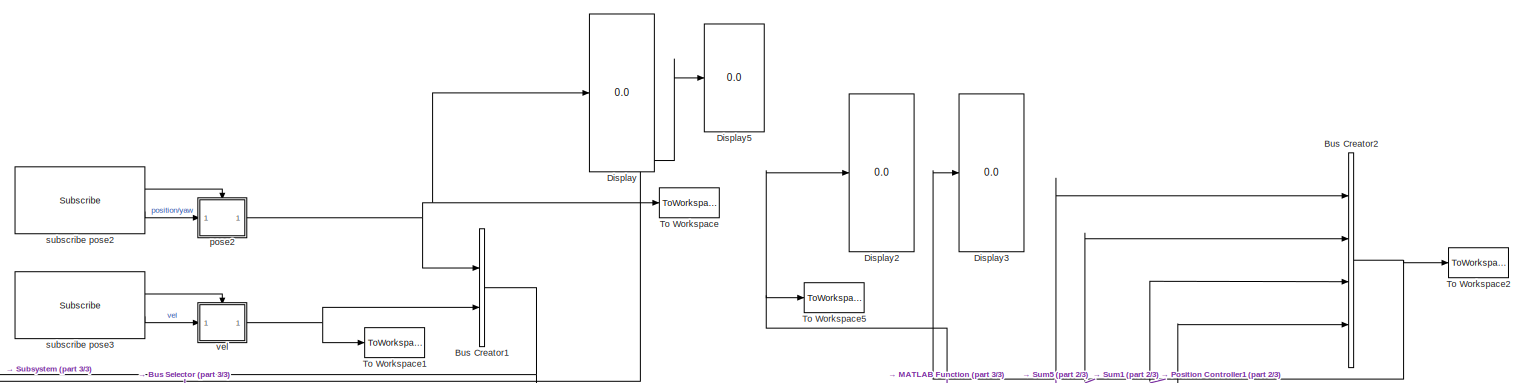
[diagram: root canvas - part 1/3, top center region]
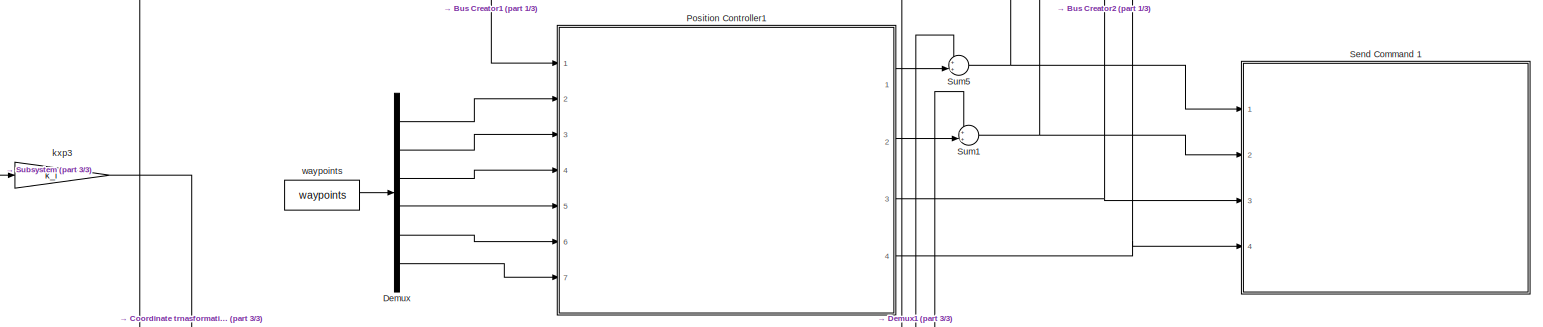
[diagram: root canvas - part 2/3, central region]
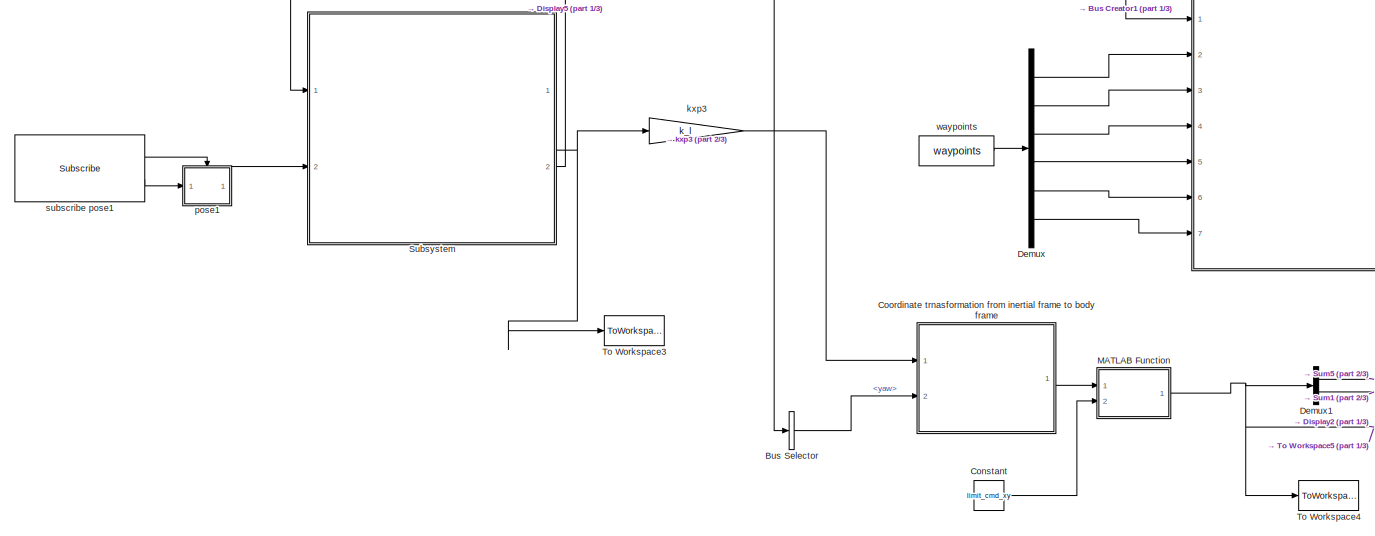
[diagram: root canvas - part 3/3, bottom left region]
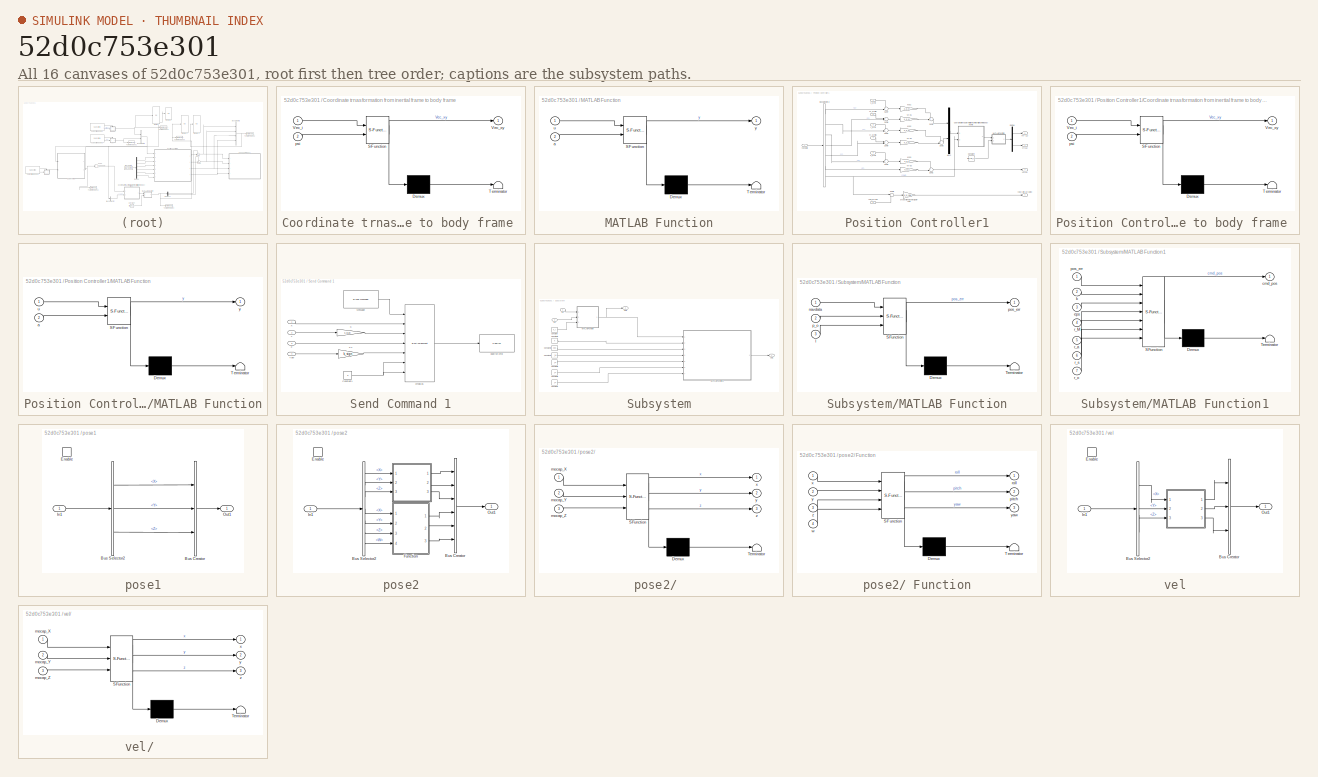
[diagram: thumbnail index - all 16 canvases of the model, root first then tree order]
MODEL slx_52d0c753e301
KIND model
CONFIG AbsTol = auto
CONFIG EnableMultiTasking = on
CONFIG FixedStep = sampleTime
CONFIG MaxStep = auto
CONFIG MinStep = auto
CONFIG RelTol = 1e-3
CONFIG SampleTimeConstraint = Unconstrained
CONFIG Solver = FixedStepAuto
CONFIG SolverName = FixedStepAuto
CONFIG StartTime = 0.0
CONFIG StopTime = inf
BLOCK [BusCreator] Bus Creator1
  DisplayOption = bar
  InheritFromInputs = on
  Inputs = 2
  Ports = [2, 1]
BLOCK [BusCreator] Bus Creator2
  DisplayOption = bar
  InheritFromInputs = on
  Inputs = 4
  Ports = [4, 1]
BLOCK [BusSelector] Bus Selector
  OutputAsBus = off
  OutputSignals = signal1.yaw
  Ports = [1, 1]
BLOCK [Constant] Constant
  Value = limit_cmd_xy
BLOCK [SubSystem] Coordinate trnasformation from inertial frame to body frame 
  ErrorFcn = Stateflow.Translate.translate
  PermitHierarchicalResolution = ExplicitOnly
  Ports = [2, 1]
  RequestExecContextInheritance = off
  SFBlockType = MATLAB Function
  TreatAsAtomicUnit = on
  Variant = off
BLOCK [Demux] Coordinate trnasformation from inertial frame to body frame / Demux 
  Outputs = 1
  Ports = [1, 1]
BLOCK [S-Function] Coordinate trnasformation from inertial frame to body frame / SFunction 
  EnableBusSupport = on
  FunctionName = sf_sfun
  PortCounts = [2 2]
  Ports = [2, 2]
  SFcnIsStateOwnerBlock = off
  SFunctionDeploymentMode = off
  Tag = Stateflow S-Function r2017bSingleARDroneCtrl 3
BLOCK [Terminator] Coordinate trnasformation from inertial frame to body frame / Terminator 
BLOCK [Inport] Coordinate trnasformation from inertial frame to body frame /Vec_i
  IconDisplay = Port number
BLOCK [Outport] Coordinate trnasformation from inertial frame to body frame /Vec_xy
  IconDisplay = Port number
BLOCK [Inport] Coordinate trnasformation from inertial frame to body frame /psi
  IconDisplay = Port number
  Port = 2
BLOCK [Demux] Demux
  DisplayOption = bar
  Outputs = 6
  Ports = [1, 6]
BLOCK [Demux] Demux1
  DisplayOption = bar
  Outputs = 2
  Ports = [1, 2]
BLOCK [Display] Display
  Decimation = 1
  Ports = [1]
BLOCK [Display] Display2
  Decimation = 1
  Ports = [1]
BLOCK [Display] Display3
  Decimation = 1
  Ports = [1]
BLOCK [Display] Display5
  Decimation = 1
  Ports = [1]
BLOCK [SubSystem] MATLAB Function
  ErrorFcn = Stateflow.Translate.translate
  PermitHierarchicalResolution = ExplicitOnly
  Ports = [2, 1]
  RequestExecContextInheritance = off
  SFBlockType = MATLAB Function
  TreatAsAtomicUnit = on
  Variant = off
BLOCK [Demux] MATLAB Function/ Demux 
  Outputs = 1
  Ports = [1, 1]
BLOCK [S-Function] MATLAB Function/ SFunction 
  EnableBusSupport = on
  FunctionName = sf_sfun
  PortCounts = [2 2]
  Ports = [2, 2]
  SFcnIsStateOwnerBlock = off
  SFunctionDeploymentMode = off
  Tag = Stateflow S-Function r2017bSingleARDroneCtrl 4
BLOCK [Terminator] MATLAB Function/ Terminator 
BLOCK [Inport] MATLAB Function/a
  IconDisplay = Port number
  Port = 2
BLOCK [Inport] MATLAB Function/u
  IconDisplay = Port number
BLOCK [Outport] MATLAB Function/y
  IconDisplay = Port number
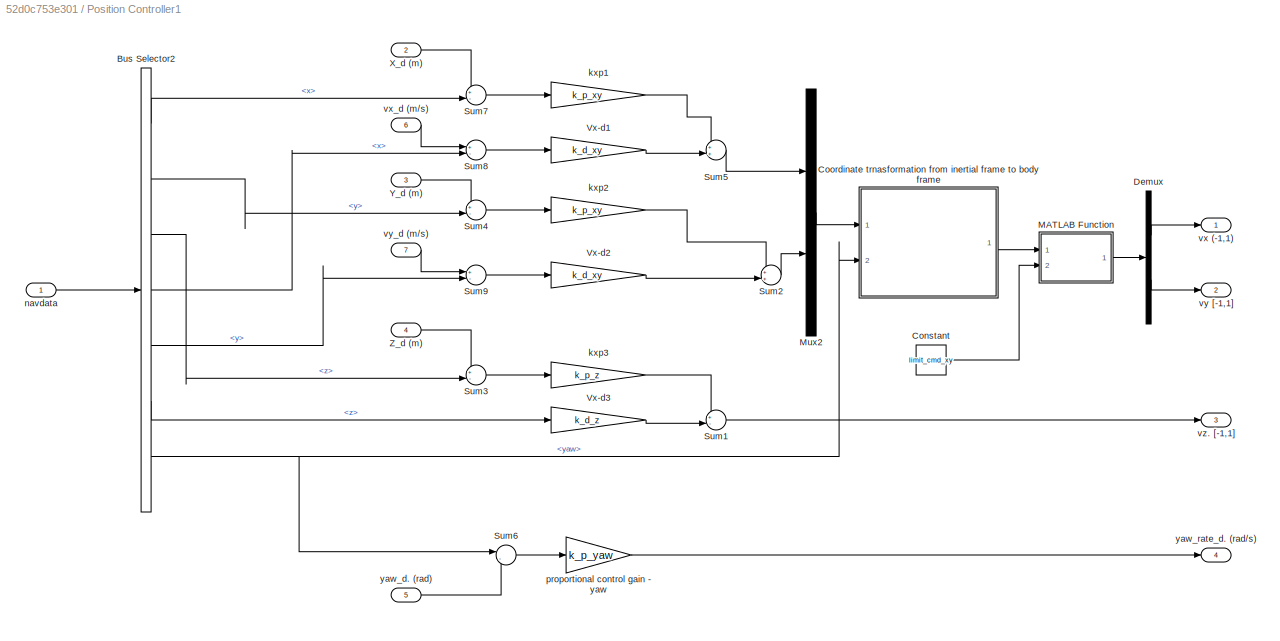
BLOCK [SubSystem] Position Controller1
  AncestorBlock = ARBlocks/Baseline Controller
  Ports = [7, 4]
  RequestExecContextInheritance = off
  Variant = off
BLOCK [BusSelector] Position Controller1/Bus Selector2
  OutputAsBus = off
  OutputSignals = signal1.x,signal1.y,signal1.z,signal2.x,signal2.y,signal2.z,signal1.yaw
  Ports = [1, 7]
BLOCK [Constant] Position Controller1/Constant
  Value = limit_cmd_xy
BLOCK [SubSystem] Position Controller1/Coordinate trnasformation from inertial frame to body frame 
  ErrorFcn = Stateflow.Translate.translate
  PermitHierarchicalResolution = ExplicitOnly
  Ports = [2, 1]
  RequestExecContextInheritance = off
  SFBlockType = MATLAB Function
  TreatAsAtomicUnit = on
  Variant = off
BLOCK [Demux] Position Controller1/Coordinate trnasformation from inertial frame to body frame / Demux 
  Outputs = 1
  Ports = [1, 1]
BLOCK [S-Function] Position Controller1/Coordinate trnasformation from inertial frame to body frame / SFunction 
  EnableBusSupport = on
  FunctionName = sf_sfun
  PortCounts = [2 2]
  Ports = [2, 2]
  SFcnIsStateOwnerBlock = off
  SFunctionDeploymentMode = off
  Tag = Stateflow S-Function r2017bSingleARDroneCtrl 13
BLOCK [Terminator] Position Controller1/Coordinate trnasformation from inertial frame to body frame / Terminator 
BLOCK [Inport] Position Controller1/Coordinate trnasformation from inertial frame to body frame /Vec_i
  IconDisplay = Port number
BLOCK [Outport] Position Controller1/Coordinate trnasformation from inertial frame to body frame /Vec_xy
  IconDisplay = Port number
BLOCK [Inport] Position Controller1/Coordinate trnasformation from inertial frame to body frame /psi
  IconDisplay = Port number
  Port = 2
BLOCK [Demux] Position Controller1/Demux
  DisplayOption = bar
  Outputs = 2
  Ports = [1, 2]
BLOCK [SubSystem] Position Controller1/MATLAB Function
  ErrorFcn = Stateflow.Translate.translate
  PermitHierarchicalResolution = ExplicitOnly
  Ports = [2, 1]
  RequestExecContextInheritance = off
  SFBlockType = MATLAB Function
  TreatAsAtomicUnit = on
  Variant = off
BLOCK [Demux] Position Controller1/MATLAB Function/ Demux 
  Outputs = 1
  Ports = [1, 1]
BLOCK [S-Function] Position Controller1/MATLAB Function/ SFunction 
  EnableBusSupport = on
  FunctionName = sf_sfun
  PortCounts = [2 2]
  Ports = [2, 2]
  SFcnIsStateOwnerBlock = off
  SFunctionDeploymentMode = off
  Tag = Stateflow S-Function r2017bSingleARDroneCtrl 5
BLOCK [Terminator] Position Controller1/MATLAB Function/ Terminator 
BLOCK [Inport] Position Controller1/MATLAB Function/a
  IconDisplay = Port number
  Port = 2
BLOCK [Inport] Position Controller1/MATLAB Function/u
  IconDisplay = Port number
BLOCK [Outport] Position Controller1/MATLAB Function/y
  IconDisplay = Port number
BLOCK [Mux] Position Controller1/Mux2
  DisplayOption = bar
  Inputs = 2
  Ports = [2, 1]
BLOCK [Sum] Position Controller1/Sum1
  IconShape = round
  InputSameDT = off
  Inputs = +-|
  OutDataTypeStr = Inherit: Inherit via internal rule
  Ports = [2, 1]
  SaturateOnIntegerOverflow = off
BLOCK [Sum] Position Controller1/Sum2
  IconShape = round
  InputSameDT = off
  Inputs = ++|
  OutDataTypeStr = Inherit: Inherit via internal rule
  Ports = [2, 1]
  SaturateOnIntegerOverflow = off
BLOCK [Sum] Position Controller1/Sum3
  IconShape = round
  InputSameDT = off
  Inputs = +-|
  OutDataTypeStr = Inherit: Inherit via internal rule
  Ports = [2, 1]
  SaturateOnIntegerOverflow = off
BLOCK [Sum] Position Controller1/Sum4
  IconShape = round
  InputSameDT = off
  Inputs = +-|
  OutDataTypeStr = Inherit: Inherit via internal rule
  Ports = [2, 1]
  SaturateOnIntegerOverflow = off
BLOCK [Sum] Position Controller1/Sum5
  IconShape = round
  InputSameDT = off
  Inputs = ++|
  OutDataTypeStr = Inherit: Inherit via internal rule
  Ports = [2, 1]
  SaturateOnIntegerOverflow = off
BLOCK [Sum] Position Controller1/Sum6
  IconShape = round
  InputSameDT = off
  Inputs = |-+
  OutDataTypeStr = Inherit: Inherit via internal rule
  Ports = [2, 1]
  SaturateOnIntegerOverflow = off
BLOCK [Sum] Position Controller1/Sum7
  IconShape = round
  InputSameDT = off
  Inputs = +-|
  OutDataTypeStr = Inherit: Inherit via internal rule
  Ports = [2, 1]
  SaturateOnIntegerOverflow = off
BLOCK [Sum] Position Controller1/Sum8
  IconShape = round
  InputSameDT = off
  Inputs = +-|
  OutDataTypeStr = Inherit: Inherit via internal rule
  Ports = [2, 1]
  SaturateOnIntegerOverflow = off
BLOCK [Sum] Position Controller1/Sum9
  IconShape = round
  InputSameDT = off
  Inputs = +-|
  OutDataTypeStr = Inherit: Inherit via internal rule
  Ports = [2, 1]
  SaturateOnIntegerOverflow = off
BLOCK [Gain] Position Controller1/Vx-d1
  Gain = k_d_xy
  OutDataTypeStr = Inherit: Inherit via internal rule
  ParamDataTypeStr = Inherit: Inherit via internal rule
  SaturateOnIntegerOverflow = off
BLOCK [Gain] Position Controller1/Vx-d2
  Gain = k_d_xy
  OutDataTypeStr = Inherit: Inherit via internal rule
  ParamDataTypeStr = Inherit: Inherit via internal rule
  SaturateOnIntegerOverflow = off
BLOCK [Gain] Position Controller1/Vx-d3
  Gain = k_d_z
  OutDataTypeStr = Inherit: Inherit via internal rule
  ParamDataTypeStr = Inherit: Inherit via internal rule
  SaturateOnIntegerOverflow = off
BLOCK [Inport] Position Controller1/X_d (m)
  IconDisplay = Port number
  Port = 2
BLOCK [Inport] Position Controller1/Y_d (m)
  IconDisplay = Port number
  Port = 3
BLOCK [Inport] Position Controller1/Z_d (m)
  IconDisplay = Port number
  Port = 4
BLOCK [Gain] Position Controller1/kxp1
  Gain = k_p_xy
  OutDataTypeStr = Inherit: Inherit via internal rule
  ParamDataTypeStr = Inherit: Inherit via internal rule
  SaturateOnIntegerOverflow = off
BLOCK [Gain] Position Controller1/kxp2
  Gain = k_p_xy
  OutDataTypeStr = Inherit: Inherit via internal rule
  ParamDataTypeStr = Inherit: Inherit via internal rule
  SaturateOnIntegerOverflow = off
BLOCK [Gain] Position Controller1/kxp3
  Gain = k_p_z
  OutDataTypeStr = Inherit: Inherit via internal rule
  ParamDataTypeStr = Inherit: Inherit via internal rule
  SaturateOnIntegerOverflow = off
BLOCK [Inport] Position Controller1/navdata
  IconDisplay = Port number
BLOCK [Gain] Position Controller1/proportional control gain - yaw
  Gain = k_p_yaw
  OutDataTypeStr = Inherit: Inherit via internal rule
  ParamDataTypeStr = Inherit: Inherit via internal rule
  SaturateOnIntegerOverflow = off
BLOCK [Outport] Position Controller1/vx (-1,1)
  IconDisplay = Port number
BLOCK [Inport] Position Controller1/vx_d (m//s)
  IconDisplay = Port number
  Port = 6
BLOCK [Outport] Position Controller1/vy [-1,1]
  IconDisplay = Port number
  Port = 2
BLOCK [Inport] Position Controller1/vy_d (m//s)
  IconDisplay = Port number
  Port = 7
BLOCK [Outport] Position Controller1/vz. [-1,1]
  IconDisplay = Port number
  Port = 3
BLOCK [Inport] Position Controller1/yaw_d. (rad)
  IconDisplay = Port number
  Port = 5
BLOCK [Outport] Position Controller1/yaw_rate_d. (rad//s)
  IconDisplay = Port number
  Port = 4
BLOCK [SubSystem] Send Command 1
  Ports = [4]
  RequestExecContextInheritance = off
  Variant = off
BLOCK [Reference] Send Command 1/ Message  REF=robotlib/Blank Message
  Ports = [0, 1]
  SourceBlock = robotlib/Blank Message
  SourceLibraryInfo = This block requires Robotics System Toolbox
  SourceProductBaseCode = RO
  SourceProductName = Robotics System Toolbox
  SourceType = ROS Blank Message
BLOCK [Constant] Send Command 1/Constant1
  Value = 0
BLOCK [Gain] Send Command 1/K
  Gain = k_sign
  OutDataTypeStr = Inherit: Inherit via internal rule
  ParamDataTypeStr = Inherit: Inherit via internal rule
  SaturateOnIntegerOverflow = off
BLOCK [Gain] Send Command 1/K1
  Gain = k_sign
  OutDataTypeStr = Inherit: Inherit via internal rule
  ParamDataTypeStr = Inherit: Inherit via internal rule
  SaturateOnIntegerOverflow = off
BLOCK [Inport] Send Command 1/X
  IconDisplay = Port number
BLOCK [Inport] Send Command 1/Y
  IconDisplay = Port number
  Port = 2
BLOCK [Inport] Send Command 1/Yaw
  IconDisplay = Port number
  Port = 4
BLOCK [Inport] Send Command 1/Z
  IconDisplay = Port number
  Port = 3
BLOCK [BusAssignment] Send Command 1/cmdBus
  AssignedSignals = Linear.X,Linear.Y,Linear.Z,Angular.Z,Angular.X,Angular.Y
  Ports = [7, 1]
BLOCK [Reference] Send Command 1/publish cmd  REF=robotlib/Publish
  Ports = [1]
  SourceBlock = robotlib/Publish
  SourceLibraryInfo = This block requires Robotics System Toolbox
  SourceProductBaseCode = RO
  SourceProductName = Robotics System Toolbox
  SourceType = ROS Publish
BLOCK [SubSystem] Subsystem
  Ports = [2, 2]
  RequestExecContextInheritance = off
  Variant = off
BLOCK [Constant] Subsystem/Constant
  Value = k_l
BLOCK [Constant] Subsystem/Constant2
  Value = k
BLOCK [Constant] Subsystem/Constant3
  Value = eps
BLOCK [Constant] Subsystem/Constant4
  Value = r_M
BLOCK [Constant] Subsystem/Constant5
  Value = r_s
BLOCK [Constant] Subsystem/Constant6
  Value = r_a
BLOCK [Constant] Subsystem/Constant7
  Value = r_o
BLOCK [Inport] Subsystem/In1
  IconDisplay = Port number
BLOCK [Inport] Subsystem/In2
  IconDisplay = Port number
  Port = 2
BLOCK [SubSystem] Subsystem/MATLAB Function
  ErrorFcn = Stateflow.Translate.translate
  PermitHierarchicalResolution = ExplicitOnly
  Ports = [3, 1]
  RequestExecContextInheritance = off
  SFBlockType = MATLAB Function
  TreatAsAtomicUnit = on
  Variant = off
BLOCK [Demux] Subsystem/MATLAB Function/ Demux 
  Outputs = 1
  Ports = [1, 1]
BLOCK [S-Function] Subsystem/MATLAB Function/ SFunction 
  EnableBusSupport = on
  FunctionName = sf_sfun
  PortCounts = [3 2]
  Ports = [3, 2]
  SFcnIsStateOwnerBlock = off
  SFunctionDeploymentMode = off
  Tag = Stateflow S-Function r2017bSingleARDroneCtrl 2
BLOCK [Terminator] Subsystem/MATLAB Function/ Terminator 
BLOCK [Inport] Subsystem/MATLAB Function/l
  IconDisplay = Port number
  Port = 3
BLOCK [Inport] Subsystem/MATLAB Function/navdata
  IconDisplay = Port number
BLOCK [Inport] Subsystem/MATLAB Function/p_o
  IconDisplay = Port number
  Port = 2
BLOCK [Outport] Subsystem/MATLAB Function/pos_err
  IconDisplay = Port number
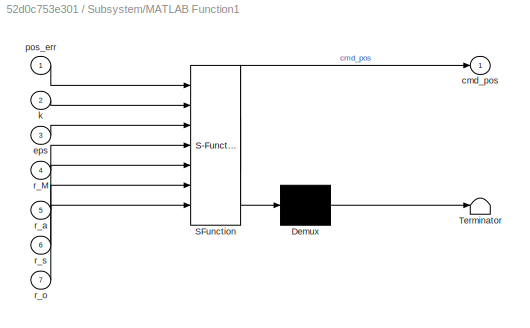
BLOCK [SubSystem] Subsystem/MATLAB Function1
  ErrorFcn = Stateflow.Translate.translate
  PermitHierarchicalResolution = ExplicitOnly
  Ports = [7, 1]
  RequestExecContextInheritance = off
  SFBlockType = MATLAB Function
  TreatAsAtomicUnit = on
  Variant = off
BLOCK [Demux] Subsystem/MATLAB Function1/ Demux 
  Outputs = 1
  Ports = [1, 1]
BLOCK [S-Function] Subsystem/MATLAB Function1/ SFunction 
  EnableBusSupport = on
  FunctionName = sf_sfun
  PortCounts = [7 2]
  Ports = [7, 2]
  SFcnIsStateOwnerBlock = off
  SFunctionDeploymentMode = off
  Tag = Stateflow S-Function r2017bSingleARDroneCtrl 1
BLOCK [Terminator] Subsystem/MATLAB Function1/ Terminator 
BLOCK [Outport] Subsystem/MATLAB Function1/cmd_pos
  IconDisplay = Port number
BLOCK [Inport] Subsystem/MATLAB Function1/eps
  IconDisplay = Port number
  Port = 3
BLOCK [Inport] Subsystem/MATLAB Function1/k
  IconDisplay = Port number
  Port = 2
BLOCK [Inport] Subsystem/MATLAB Function1/pos_err
  IconDisplay = Port number
BLOCK [Inport] Subsystem/MATLAB Function1/r_M
  IconDisplay = Port number
  Port = 4
BLOCK [Inport] Subsystem/MATLAB Function1/r_a
  IconDisplay = Port number
  Port = 5
BLOCK [Inport] Subsystem/MATLAB Function1/r_o
  IconDisplay = Port number
  Port = 7
BLOCK [Inport] Subsystem/MATLAB Function1/r_s
  IconDisplay = Port number
  Port = 6
BLOCK [Outport] Subsystem/Out1
  IconDisplay = Port number
BLOCK [Outport] Subsystem/Out2
  IconDisplay = Port number
  Port = 2
BLOCK [Sum] Sum1
  IconShape = round
  InputSameDT = off
  Inputs = ++|
  OutDataTypeStr = Inherit: Inherit via internal rule
  Ports = [2, 1]
  SaturateOnIntegerOverflow = off
BLOCK [Sum] Sum5
  IconShape = round
  InputSameDT = off
  Inputs = ++|
  OutDataTypeStr = Inherit: Inherit via internal rule
  Ports = [2, 1]
  SaturateOnIntegerOverflow = off
BLOCK [ToWorkspace] To Workspace
  FixptAsFi = on
  MaxDataPoints = inf
  Ports = [1]
  SampleTime = -1
  Save2DSignal = 3-D array (concatenate along third dimension)
  SaveFormat = Timeseries
  VariableName = r1_pos
BLOCK [ToWorkspace] To Workspace1
  FixptAsFi = on
  MaxDataPoints = inf
  Ports = [1]
  SampleTime = -1
  Save2DSignal = 3-D array (concatenate along third dimension)
  SaveFormat = Timeseries
  VariableName = r1_vel
BLOCK [ToWorkspace] To Workspace2
  FixptAsFi = on
  MaxDataPoints = inf
  Ports = [1]
  SampleTime = -1
  Save2DSignal = 3-D array (concatenate along third dimension)
  SaveFormat = Timeseries
  VariableName = r1_cmd
BLOCK [ToWorkspace] To Workspace3
  FixptAsFi = on
  MaxDataPoints = inf
  Ports = [1]
  SampleTime = -1
  Save2DSignal = 3-D array (concatenate along third dimension)
  SaveFormat = Timeseries
  VariableName = r1_obs
BLOCK [ToWorkspace] To Workspace4
  FixptAsFi = on
  MaxDataPoints = inf
  Ports = [1]
  SampleTime = -1
  Save2DSignal = 3-D array (concatenate along third dimension)
  SaveFormat = Timeseries
  VariableName = r1_obs_cmd
BLOCK [ToWorkspace] To Workspace5
  FixptAsFi = on
  MaxDataPoints = inf
  Ports = [1]
  SampleTime = -1
  Save2DSignal = 3-D array (concatenate along third dimension)
  SaveFormat = Timeseries
  VariableName = r1_cmd_obstacle
BLOCK [Gain] kxp3
  Gain = k_l
  OutDataTypeStr = Inherit: Inherit via internal rule
  ParamDataTypeStr = Inherit: Inherit via internal rule
  SaturateOnIntegerOverflow = off
BLOCK [SubSystem] pose1
  Ports = [1, 1, 1]
  RequestExecContextInheritance = off
  Variant = off
BLOCK [BusCreator] pose1/Bus Creator
  DisplayOption = bar
  InheritFromInputs = on
  Inputs = 3
  Ports = [3, 1]
BLOCK [BusSelector] pose1/Bus Selector2
  OutputAsBus = off
  OutputSignals = X,Y,Z
  Ports = [1, 3]
BLOCK [EnablePort] pose1/Enable
  Ports = []
BLOCK [Inport] pose1/In1
  IconDisplay = Port number
BLOCK [Outport] pose1/Out1
  IconDisplay = Port number
BLOCK [SubSystem] pose2
  Ports = [1, 1, 1]
  RequestExecContextInheritance = off
  Variant = off
BLOCK [SubSystem] pose2/ 
  ErrorFcn = Stateflow.Translate.translate
  PermitHierarchicalResolution = ExplicitOnly
  Ports = [3, 3]
  RequestExecContextInheritance = off
  SFBlockType = MATLAB Function
  TreatAsAtomicUnit = on
  Variant = off
BLOCK [Demux] pose2/ / Demux 
  Outputs = 1
  Ports = [1, 1]
BLOCK [S-Function] pose2/ / SFunction 
  EnableBusSupport = on
  FunctionName = sf_sfun
  PortCounts = [3 4]
  Ports = [3, 4]
  SFcnIsStateOwnerBlock = off
  SFunctionDeploymentMode = off
  Tag = Stateflow S-Function r2017bSingleARDroneCtrl 10
BLOCK [Terminator] pose2/ / Terminator 
BLOCK [Inport] pose2/ /mocap_X
  IconDisplay = Port number
BLOCK [Inport] pose2/ /mocap_Y
  IconDisplay = Port number
  Port = 2
BLOCK [Inport] pose2/ /mocap_Z
  IconDisplay = Port number
  Port = 3
BLOCK [Outport] pose2/ /x
  IconDisplay = Port number
BLOCK [Outport] pose2/ /y
  IconDisplay = Port number
  Port = 2
BLOCK [Outport] pose2/ /z
  IconDisplay = Port number
  Port = 3
BLOCK [SubSystem] pose2/ Function
  ErrorFcn = Stateflow.Translate.translate
  PermitHierarchicalResolution = ExplicitOnly
  Ports = [4, 3]
  RequestExecContextInheritance = off
  SFBlockType = MATLAB Function
  TreatAsAtomicUnit = on
  Variant = off
BLOCK [Demux] pose2/ Function/ Demux 
  Outputs = 1
  Ports = [1, 1]
BLOCK [S-Function] pose2/ Function/ SFunction 
  EnableBusSupport = on
  FunctionName = sf_sfun
  PortCounts = [4 4]
  Ports = [4, 4]
  SFcnIsStateOwnerBlock = off
  SFunctionDeploymentMode = off
  Tag = Stateflow S-Function r2017bSingleARDroneCtrl 11
BLOCK [Terminator] pose2/ Function/ Terminator 
BLOCK [Outport] pose2/ Function/pitch
  IconDisplay = Port number
  Port = 2
BLOCK [Outport] pose2/ Function/roll
  IconDisplay = Port number
BLOCK [Inport] pose2/ Function/w
  IconDisplay = Port number
  Port = 4
BLOCK [Inport] pose2/ Function/x
  IconDisplay = Port number
BLOCK [Inport] pose2/ Function/y
  IconDisplay = Port number
  Port = 2
BLOCK [Outport] pose2/ Function/yaw
  IconDisplay = Port number
  Port = 3
BLOCK [Inport] pose2/ Function/z
  IconDisplay = Port number
  Port = 3
BLOCK [BusCreator] pose2/Bus Creator
  DisplayOption = bar
  InheritFromInputs = on
  Inputs = 6
  Ports = [6, 1]
BLOCK [BusSelector] pose2/Bus Selector2
  OutputAsBus = off
  OutputSignals = Pose.Position.X,Pose.Position.Y,Pose.Position.Z,Pose.Orientation.X,Pose.Orientation.Y,Pose.Orientation.Z,Pose.Orientation.W
  Ports = [1, 7]
BLOCK [EnablePort] pose2/Enable
  Ports = []
BLOCK [Inport] pose2/In1
  IconDisplay = Port number
BLOCK [Outport] pose2/Out1
  IconDisplay = Port number
BLOCK [Reference] subscribe pose1  REF=robotlib/Subscribe
  Ports = [0, 2]
  SourceBlock = robotlib/Subscribe
  SourceLibraryInfo = This block requires Robotics System Toolbox
  SourceProductBaseCode = RO
  SourceProductName = Robotics System Toolbox
  SourceType = ROS Subscribe
BLOCK [Reference] subscribe pose2  REF=robotlib/Subscribe
  Ports = [0, 2]
  SourceBlock = robotlib/Subscribe
  SourceLibraryInfo = This block requires Robotics System Toolbox
  SourceProductBaseCode = RO
  SourceProductName = Robotics System Toolbox
  SourceType = ROS Subscribe
BLOCK [Reference] subscribe pose3  REF=robotlib/Subscribe
  Ports = [0, 2]
  SourceBlock = robotlib/Subscribe
  SourceLibraryInfo = This block requires Robotics System Toolbox
  SourceProductBaseCode = RO
  SourceProductName = Robotics System Toolbox
  SourceType = ROS Subscribe
BLOCK [SubSystem] vel
  Ports = [1, 1, 1]
  RequestExecContextInheritance = off
  Variant = off
BLOCK [SubSystem] vel/ 
  ErrorFcn = Stateflow.Translate.translate
  PermitHierarchicalResolution = ExplicitOnly
  Ports = [3, 3]
  RequestExecContextInheritance = off
  SFBlockType = MATLAB Function
  TreatAsAtomicUnit = on
  Variant = off
BLOCK [Demux] vel/ / Demux 
  Outputs = 1
  Ports = [1, 1]
BLOCK [S-Function] vel/ / SFunction 
  EnableBusSupport = on
  FunctionName = sf_sfun
  PortCounts = [3 4]
  Ports = [3, 4]
  SFcnIsStateOwnerBlock = off
  SFunctionDeploymentMode = off
  Tag = Stateflow S-Function r2017bSingleARDroneCtrl 12
BLOCK [Terminator] vel/ / Terminator 
BLOCK [Inport] vel/ /mocap_X
  IconDisplay = Port number
BLOCK [Inport] vel/ /mocap_Y
  IconDisplay = Port number
  Port = 2
BLOCK [Inport] vel/ /mocap_Z
  IconDisplay = Port number
  Port = 3
BLOCK [Outport] vel/ /x
  IconDisplay = Port number
BLOCK [Outport] vel/ /y
  IconDisplay = Port number
  Port = 2
BLOCK [Outport] vel/ /z
  IconDisplay = Port number
  Port = 3
BLOCK [BusCreator] vel/Bus Creator
  DisplayOption = bar
  InheritFromInputs = on
  Inputs = 3
  Ports = [3, 1]
BLOCK [BusSelector] vel/Bus Selector2
  OutputAsBus = off
  OutputSignals = Point.X,Point.Y,Point.Z
  Ports = [1, 3]
BLOCK [EnablePort] vel/Enable
  Ports = []
BLOCK [Inport] vel/In1
  IconDisplay = Port number
BLOCK [Outport] vel/Out1
  IconDisplay = Port number
BLOCK [Constant] waypoints
  Value = waypoints
  VectorParams1D = off
NET Bus Creator1:1 -> Bus Selector:1, Position Controller1:1, Subsystem:1
NET Bus Creator2:1 -> Display3:1, To Workspace2:1
LINE Bus Selector:1 -> Coordinate trnasformation from inertial frame to body frame :2
LINE Constant:1 -> MATLAB Function:2
LINE Coordinate trnasformation from inertial frame to body frame :1 -> MATLAB Function:1
LINE Demux1:1 -> Sum5:1
LINE Demux1:2 -> Sum1:1
LINE Demux:1 -> Position Controller1:2
LINE Demux:2 -> Position Controller1:3
LINE Demux:3 -> Position Controller1:4
LINE Demux:4 -> Position Controller1:5
LINE Demux:5 -> Position Controller1:6
LINE Demux:6 -> Position Controller1:7
NET MATLAB Function:1 -> Demux1:1, Display2:1, To Workspace4:1, To Workspace5:1
LINE Position Controller1:1 -> Sum5:2
LINE Position Controller1:2 -> Sum1:2
NET Position Controller1:3 -> Bus Creator2:3, Send Command 1:3
NET Position Controller1:4 -> Bus Creator2:4, Send Command 1:4
LINE Send Command 1/ Message:1 -> Send Command 1/cmdBus:1
NET Send Command 1/Constant1:1 -> Send Command 1/cmdBus:6, Send Command 1/cmdBus:7
LINE Send Command 1/K1:1 -> Send Command 1/cmdBus:5
LINE Send Command 1/K:1 -> Send Command 1/cmdBus:3
LINE Send Command 1/X:1 -> Send Command 1/cmdBus:2
LINE Send Command 1/Y:1 -> Send Command 1/K:1
LINE Send Command 1/Yaw:1 -> Send Command 1/K1:1
LINE Send Command 1/Z:1 -> Send Command 1/cmdBus:4
LINE Send Command 1/cmdBus:1 -> Send Command 1/publish cmd:1
LINE Subsystem/Constant2:1 -> Subsystem/MATLAB Function1:2
LINE Subsystem/Constant3:1 -> Subsystem/MATLAB Function1:3
LINE Subsystem/Constant4:1 -> Subsystem/MATLAB Function1:4
LINE Subsystem/Constant5:1 -> Subsystem/MATLAB Function1:6
LINE Subsystem/Constant6:1 -> Subsystem/MATLAB Function1:5
LINE Subsystem/Constant7:1 -> Subsystem/MATLAB Function1:7
LINE Subsystem/Constant:1 -> Subsystem/MATLAB Function:3
LINE Subsystem/In1:1 -> Subsystem/MATLAB Function:1
LINE Subsystem/In2:1 -> Subsystem/MATLAB Function:2
LINE Subsystem/MATLAB Function1:1 -> Subsystem/Out1:1
NET Subsystem/MATLAB Function:1 -> Subsystem/MATLAB Function1:1, Subsystem/Out2:1
NET Subsystem:1 -> To Workspace3:1, kxp3:1
LINE Subsystem:2 -> Display5:1
NET Sum1:1 -> Bus Creator2:2, Send Command 1:2
NET Sum5:1 -> Bus Creator2:1, Send Command 1:1
LINE kxp3:1 -> Coordinate trnasformation from inertial frame to body frame :1
LINE pose1/Bus Creator:1 -> pose1/Out1:1
LINE pose1/Bus Selector2:1 -> pose1/Bus Creator:1
LINE pose1/Bus Selector2:2 -> pose1/Bus Creator:2
LINE pose1/Bus Selector2:3 -> pose1/Bus Creator:3
LINE pose1/In1:1 -> pose1/Bus Selector2:1
LINE pose1:1 -> Subsystem:2
LINE pose2/ :1 -> pose2/Bus Creator:1
LINE pose2/ :2 -> pose2/Bus Creator:2
LINE pose2/ :3 -> pose2/Bus Creator:3
LINE pose2/ Function:1 -> pose2/Bus Creator:4
LINE pose2/ Function:2 -> pose2/Bus Creator:5
LINE pose2/ Function:3 -> pose2/Bus Creator:6
LINE pose2/Bus Creator:1 -> pose2/Out1:1
LINE pose2/Bus Selector2:1 -> pose2/ :1
LINE pose2/Bus Selector2:2 -> pose2/ :2
LINE pose2/Bus Selector2:3 -> pose2/ :3
LINE pose2/Bus Selector2:4 -> pose2/ Function:1
LINE pose2/Bus Selector2:5 -> pose2/ Function:2
LINE pose2/Bus Selector2:6 -> pose2/ Function:3
LINE pose2/Bus Selector2:7 -> pose2/ Function:4
LINE pose2/In1:1 -> pose2/Bus Selector2:1
NET pose2:1 -> Bus Creator1:1, Display:1, To Workspace:1
LINE subscribe pose1:1 -> pose1:enable
LINE subscribe pose1:2 -> pose1:1
LINE subscribe pose2:1 -> pose2:enable
LINE subscribe pose2:2 -> pose2:1
LINE subscribe pose3:1 -> vel:enable
LINE subscribe pose3:2 -> vel:1
LINE vel/ :1 -> vel/Bus Creator:1
LINE vel/ :2 -> vel/Bus Creator:2
LINE vel/ :3 -> vel/Bus Creator:3
LINE vel/Bus Creator:1 -> vel/Out1:1
LINE vel/Bus Selector2:1 -> vel/ :1
LINE vel/Bus Selector2:2 -> vel/ :2
LINE vel/Bus Selector2:3 -> vel/ :3
LINE vel/In1:1 -> vel/Bus Selector2:1
NET vel:1 -> Bus Creator1:2, To Workspace1:1
LINE waypoints:1 -> Demux:1
note: NET lines group one-source signal fan-out (src -> all destinations, sorted); 1:1 wires keep LINE
CHART Subsystem/MATLAB Function1 states=1 transitions=1
  STATE_LABEL 'eML_blk_kernel()'
  STATE_LABEL 'SCRIPT:\nfunction cmd_pos=V_o(pos_err,k,eps,r_M,r_a,r_s,r_o)\n    t=norm(pos_err);\n    r_Mo = r_M+r_o;\n    r_ao = r_a+r_o;\n    f = k*sig(t,r_Mo,r_ao);\n    f_grad = k*grad_sig(t,r_Mo,r_ao);\n    g = (1 +eps) * t - r_Mo * s_m(t/r_Mo, r_s);\n    g_grad = (1 + eps) - grad_s_m(t/r_Mo, r_s);\n    V = (f_grad*g-f*g_grad)/(g*g);\n    cmd_pos = V*(pos_err)/t;\nend\n\nfunction sig_out=sig(x,  d1, d2)\n     A = -2/((d...<+1219ch>'
CHART Subsystem/MATLAB Function states=1 transitions=1
  STATE_LABEL 'eML_blk_kernel()'
  STATE_LABEL "SCRIPT:\nfunction pos_err = fcn(navdata, p_o,l) % navdata: x y z yaw vx vy vz\nx_err =p_o(1)-navdata(1)+1/l*navdata(5); % po_x-px+1/l*vx\ny_err =p_o(2)-navdata(2)+1/l*navdata(6);\npos_err = [x_err,y_err]';\n"
CHART Coordinate trnasformation 
from inertial frame to body frame  states=1 transitions=1
  STATE_LABEL 'eML_blk_kernel()'
  STATE_LABEL 'SCRIPT:\nfunction Vec_xy  = fcn(Vec_i , psi)\n%#codegen\nT = [cos(psi) sin(psi) ; -sin(psi) cos(psi)] ; \nVec_xy = T*Vec_i(1:2,1); \n\n'
CHART MATLAB Function states=1 transitions=1
  STATE_LABEL 'eML_blk_kernel()'
  STATE_LABEL 'SCRIPT:\nfunction y = fcn(u,a)\n    temp = norm(u,Inf);\n    if  temp<=a\n        y = u;\n    else\n        y= a*u/temp;\n    end\nend'
CHART Position Controller1/MATLAB Function states=1 transitions=1
  STATE_LABEL 'eML_blk_kernel()'
  STATE_LABEL 'SCRIPT:\nfunction y = fcn(u,a)\n    temp = norm(u,Inf);\n    if  temp<=a\n        y = u;\n    else\n        y= a*u/temp;\n    end\nend'
CHART pose2/  states=1 transitions=1
  STATE_LABEL 'eML_blk_kernel()'
  STATE_LABEL 'SCRIPT:\nfunction [x, y, z] = xyz_tf(mocap_X, mocap_Y, mocap_Z)\nx =  -mocap_Y;\ny =  -mocap_X;\nz =  mocap_Z;'
CHART pose2/ Function states=1 transitions=1
  STATE_LABEL 'eML_blk_kernel()'
  STATE_LABEL 'SCRIPT:\nfunction [roll, pitch, yaw] = quat2rpy(x, y, z, w)\n    t0 = -2.0 * (y * y + z * z) + 1.0;\n    t1 = +2.0 * (x * y + w * z);\n    t2 = -2.0 * (x * z - w * y);\n    t3 = +2.0 * (y * z + w * x);\n    t4 = -2.0 * (x * x + y * y) + 1.0;\n\n    roll = -asin(t2);\n    pitch = -atan2(t3, t4);\n    yaw= -atan2(t1, t0);'
CHART vel/  states=1 transitions=1
  STATE_LABEL 'eML_blk_kernel()'
  STATE_LABEL 'SCRIPT:\nfunction [x, y, z] = xyz_tf(mocap_X, mocap_Y, mocap_Z)\nx = - mocap_Y;\ny = - mocap_X;\nz = mocap_Z;'
CHART Position Controller1/Coordinate trnasformation 
from inertial frame to body frame  states=1 transitions=1
  STATE_LABEL 'eML_blk_kernel()'
  STATE_LABEL 'SCRIPT:\nfunction Vec_xy  = fcn(Vec_i , psi)\n%#codegen\nT = [cos(psi) sin(psi) ; -sin(psi) cos(psi)] ; \nVec_xy = T*Vec_i(1:2,1); \n\n'
